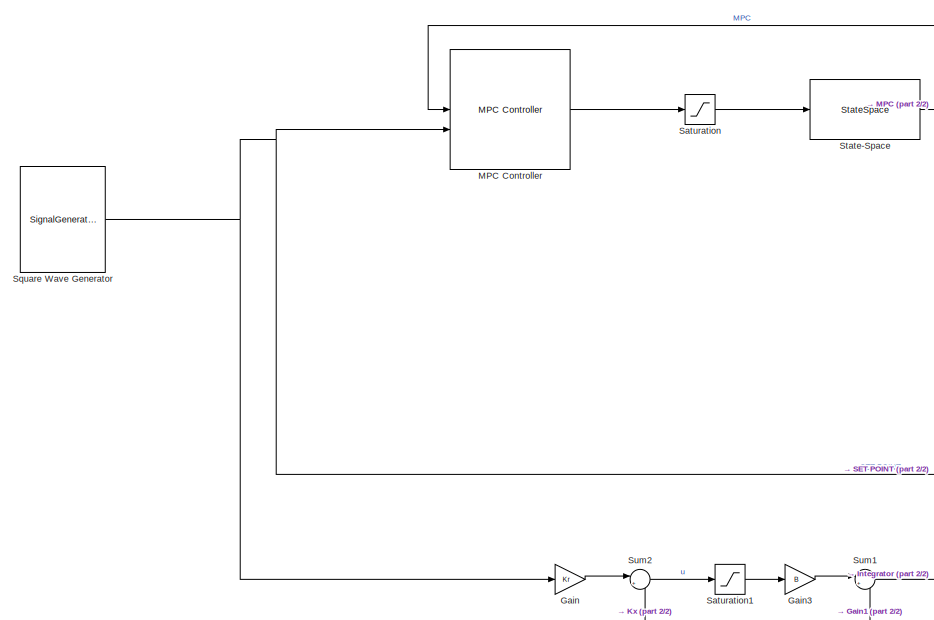
[diagram: root canvas - part 1/2, left side, full height]
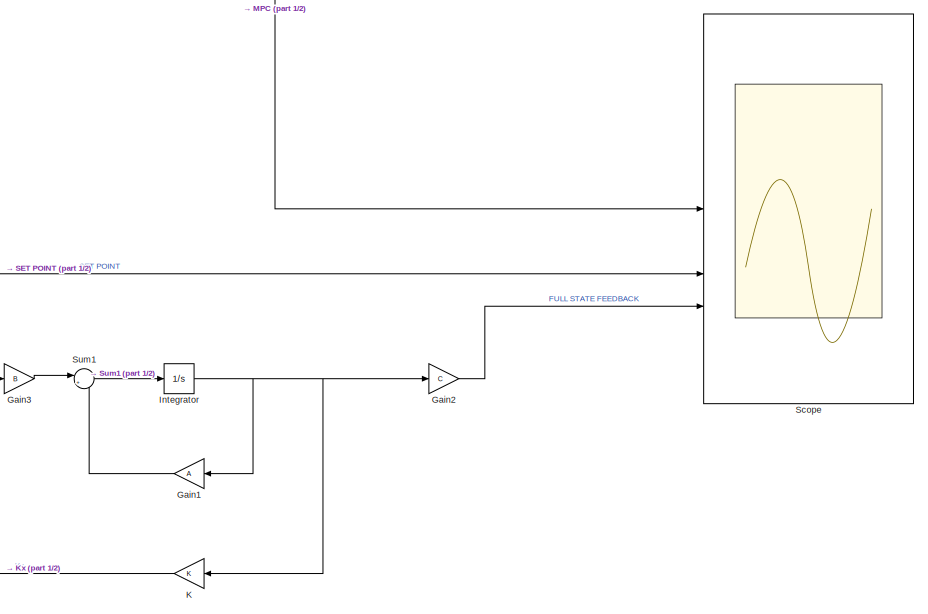
[diagram: root canvas - part 2/2, middle right region]
MODEL slx_64694f3e99e0
KIND model
CONFIG AbsTol = auto
CONFIG EnableMultiTasking = off
CONFIG FixedStep = auto
CONFIG MaxStep = auto
CONFIG MinStep = auto
CONFIG RelTol = 1e-3
CONFIG SampleTimeConstraint = Unconstrained
CONFIG SolverName = VariableStepAuto
CONFIG StartTime = 0.0
CONFIG StopTime = 5
BLOCK [Gain] Gain
  Gain = Kr
BLOCK [Gain] Gain1
  Gain = A
  Multiplication = Matrix(K*u)
BLOCK [Gain] Gain2
  Gain = C
  Multiplication = Matrix(K*u)
BLOCK [Gain] Gain3
  Gain = B
  Multiplication = Matrix(K*u)
BLOCK [Integrator] Integrator
BLOCK [Gain] K
  Gain = K
  Multiplication = Matrix(K*u)
  NameLocation = top
BLOCK [Reference] MPC Controller  REF=mpclib/MPC Controller  (lib defined in mdl_ae329e0e0455)
  SCDEnableBlockLinearizationSpecification = on
  SourceBlock = mpclib/MPC Controller
  SourceType = MPC
BLOCK [Saturate] Saturation
  LowerLimit = -300
  UpperLimit = 300
BLOCK [Saturate] Saturation1
  LowerLimit = -300
  UpperLimit = 300
BLOCK [Scope] Scope
  Floating = off
  NumInputPorts = 3
  ScopeSpecificationString = Simulink.scopes.TimeScopeBlockCfg('CurrentConfiguration', extmgr.ConfigurationSet(extmgr.Configuration('Core','General UI',true),extmgr.Configuration('Core','Source UI',true),extmgr.Configuration('Sources','WiredSimulink',true),extmgr.Configuration('Visuals','Time Domain',true,'SerializedDisplays',{struct('MinYLimReal','-19.13048','MaxYLimReal','17.55863','YLabelReal','','MinYLimMag','0.00000','Ma...<+1666ch>
BLOCK [SignalGenerator] Square Wave Generator
  Amplitude = 10
  Frequency = 0.4
  WaveForm = sawtooth
BLOCK [StateSpace] State-Space
  A = A
  B = B
  C = C
  D = D
  InitialCondition = 0
BLOCK [Sum] Sum1
  Inputs = |++
BLOCK [Sum] Sum2
  Inputs = |+-
LINE Gain1:1 -> Sum1:2
LINE Gain2:1 -> Scope:3
LINE Gain3:1 -> Sum1:1
LINE Gain:1 -> Sum2:1
NET Integrator:1 -> Gain1:1, Gain2:1, K:1
LINE K:1 -> Sum2:2
LINE MPC Controller:1 -> Saturation:1
LINE Saturation1:1 -> Gain3:1
LINE Saturation:1 -> State-Space:1
NET Square Wave Generator:1 -> Gain:1, MPC Controller:2, Scope:2
NET State-Space:1 -> MPC Controller:1, Scope:1
LINE Sum1:1 -> Integrator:1
LINE Sum2:1 -> Saturation1:1
note: NET lines group one-source signal fan-out (src -> all destinations, sorted); 1:1 wires keep LINE
